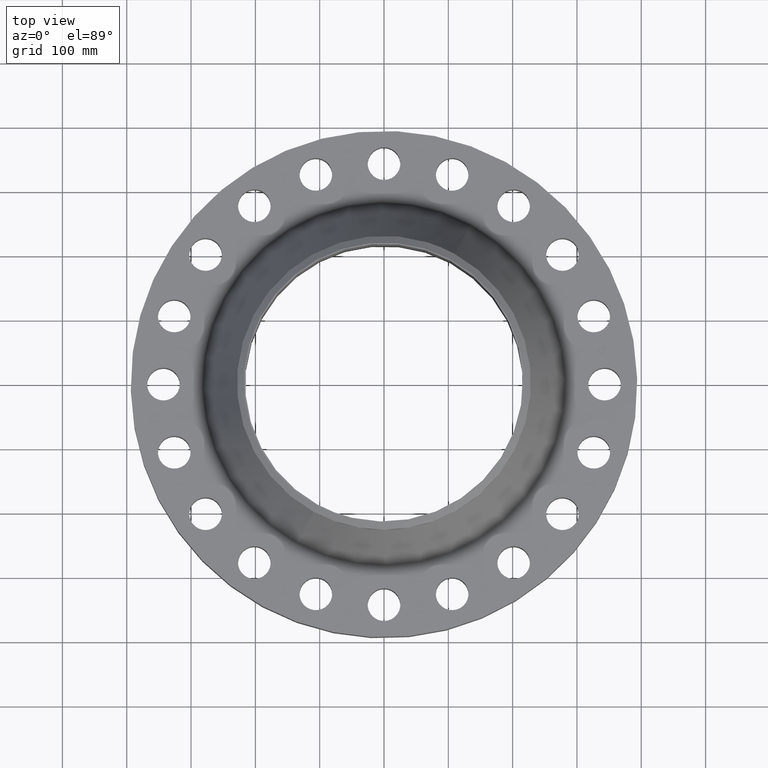
[diagram: clean part render]
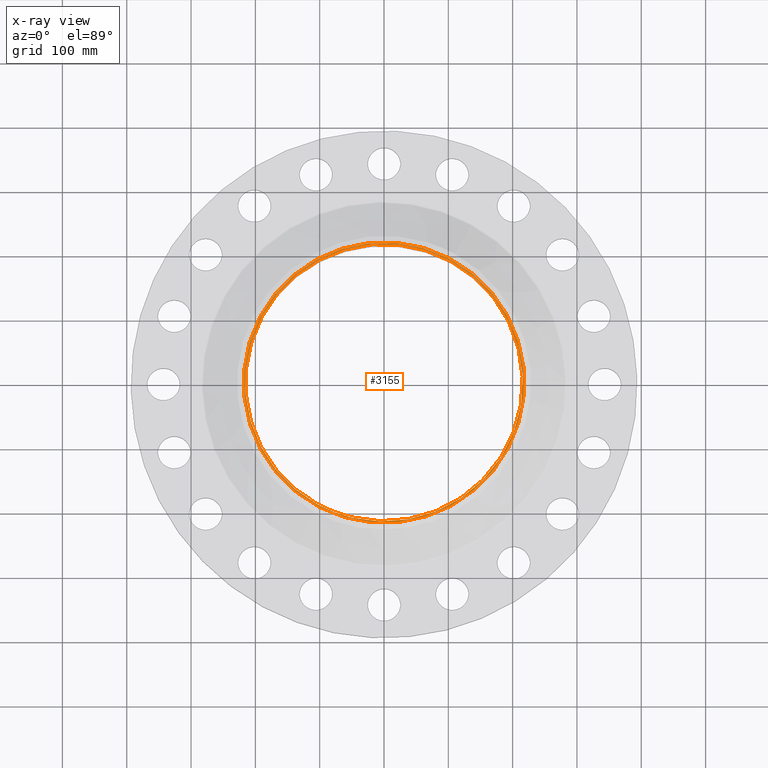
[diagram: x-ray — body ghosted, one internal face saturated and labeled with its STEP entity id]
A machine part, top view, then the same camera in x-ray: the body is ghosted and one INTERNAL B-rep face — a face not visible from any outside direction — is saturated and labeled: STEP entity #3155.
In plain terms, the highlighted planar face has unit normal (0, 0, -1).
Its self-contained STEP definition (entity closure, byte-faithful):
#2472=AXIS2_PLACEMENT_3D('Circle Axis2P3D',#2470,#2471,$) ;
#3131=AXIS2_PLACEMENT_3D('Plane Axis2P3D',#3128,#3129,#3130) ;
#3135=AXIS2_PLACEMENT_3D('Circle Axis2P3D',#3133,#3134,$) ;
#3144=AXIS2_PLACEMENT_3D('Circle Axis2P3D',#3142,#3143,$) ;
#2409=CARTESIAN_POINT('Control Point',(4.07511707815,7.45945177609,9.00000000004)) ;
#2410=CARTESIAN_POINT('Control Point',(4.66098105064,7.13939282921,9.00000000004)) ;
#2411=CARTESIAN_POINT('Control Point',(5.2154233095,6.76181682133,9.00000000004)) ;
#2412=CARTESIAN_POINT('Control Point',(5.73091221257,6.33083345495,9.00000000004)) ;
#2413=CARTESIAN_POINT('Control Point',(6.67056657475,5.37326929513,9.00000000004)) ;
#2414=CARTESIAN_POINT('Control Point',(7.40605811924,4.2512480705,9.00000000003)) ;
#2415=CARTESIAN_POINT('Control Point',(7.71737757209,3.65580229668,9.00000000003)) ;
#2416=CARTESIAN_POINT('Control Point',(8.21906106555,2.4115382118,9.00000000003)) ;
#2417=CARTESIAN_POINT('Control Point',(8.46918771641,1.0934653386,9.00000000003)) ;
#2418=CARTESIAN_POINT('Control Point',(8.52894215445,0.424208378666,9.00000000003)) ;
#2419=CARTESIAN_POINT('Control Point',(8.5162780151,-0.917327703632,9.00000000003)) ;
#2420=CARTESIAN_POINT('Control Point',(8.24296025714,-2.23078757882,9.00000000003)) ;
#2421=CARTESIAN_POINT('Control Point',(8.04205260886,-2.87196741954,9.00000000002)) ;
#2422=CARTESIAN_POINT('Control Point',(7.51696883709,-4.10653879178,9.00000000002)) ;
#2423=CARTESIAN_POINT('Control Point',(6.76181682133,-5.2154233095,9.00000000002)) ;
#2424=CARTESIAN_POINT('Control Point',(6.33083345495,-5.73091221257,9.00000000002)) ;
#2425=CARTESIAN_POINT('Control Point',(5.37326929514,-6.67056657475,9.00000000002)) ;
#2426=CARTESIAN_POINT('Control Point',(4.25124807051,-7.40605811924,9.00000000002)) ;
#2427=CARTESIAN_POINT('Control Point',(3.65580229668,-7.71737757208,9.00000000002)) ;
#2428=CARTESIAN_POINT('Control Point',(2.4115382118,-8.21906106555,9.00000000001)) ;
#2429=CARTESIAN_POINT('Control Point',(1.0934653386,-8.46918771641,9.00000000001)) ;
#2430=CARTESIAN_POINT('Control Point',(0.424208378669,-8.52894215445,9.00000000001)) ;
#2431=CARTESIAN_POINT('Control Point',(-0.917327703629,-8.5162780151,9.00000000001)) ;
#2432=CARTESIAN_POINT('Control Point',(-2.23078757881,-8.24296025714,9.00000000001)) ;
#2433=CARTESIAN_POINT('Control Point',(-2.87196741954,-8.04205260886,9.00000000001)) ;
#2434=CARTESIAN_POINT('Control Point',(-3.48925310566,-7.77951072298,9.00000000001)) ;
#2435=CARTESIAN_POINT('Control Point',(-4.07511707815,-7.4594517761,9.00000000001)) ;
#2436=CARTESIAN_POINT('Vertex',(4.07511707815,7.45945177609,9.00000000001)) ;
#2438=CARTESIAN_POINT('Vertex',(-4.07511707813,-7.45945177608,9.00000000004)) ;
#2470=CARTESIAN_POINT('Axis2P3D Location',(0.,0.,9.00000000001)) ;
#3128=CARTESIAN_POINT('Axis2P3D Location',(0.,9.00000000004,9.00000000004)) ;
#3133=CARTESIAN_POINT('Axis2P3D Location',(5.59482469102E-016,-1.86643351693E-011,9.00000000004)) ;
#3137=CARTESIAN_POINT('Vertex',(4.11286712056,-7.52855276522,9.00000000004)) ;
#3139=CARTESIAN_POINT('Vertex',(-4.11286712056,7.52855276522,9.00000000004)) ;
#3142=CARTESIAN_POINT('Axis2P3D Location',(3.08537797236E-011,-1.80936630508E-012,9.00000000004)) ;
#2471=DIRECTION('Axis2P3D Direction',(-0.,0.,-0.0393700787402)) ;
#3129=DIRECTION('Axis2P3D Direction',(0.,0.,-0.0393700787402)) ;
#3130=DIRECTION('Axis2P3D XDirection',(0.0393700787402,0.,0.)) ;
#3134=DIRECTION('Axis2P3D Direction',(0.,0.,-0.0393700787402)) ;
#3143=DIRECTION('Axis2P3D Direction',(0.,0.,-0.0393700787402)) ;
#3148=ORIENTED_EDGE('',*,*,#3141,.T.) ;
#3149=ORIENTED_EDGE('',*,*,#3146,.T.) ;
#3152=ORIENTED_EDGE('',*,*,#2474,.T.) ;
#3153=ORIENTED_EDGE('',*,*,#2440,.T.) ;
#3154=FACE_BOUND('',#3151,.T.) ;
#3155=ADVANCED_FACE('PartBody',(#3150,#3154),#3132,.F.) ;
#2408=B_SPLINE_CURVE_WITH_KNOTS('',5,(#2409,#2410,#2411,#2412,#2413,#2414,#2415,#2416,#2417,#2418,#2419,#2420,#2421,#2422,#2423,#2424,#2425,#2426,#2427,#2428,#2429,#2430,#2431,#2432,#2433,#2434,#2435),.UNSPECIFIED.,.F.,.U.,(6,3,3,3,3,3,3,3,6),(-339.134926956,-254.351195217,-169.567463478,-84.783731739,2.84217094304E-014,84.783731739,169.567463478,254.351195217,339.134926956),.UNSPECIFIED.) ;
#2473=CIRCLE('generated circle',#2472,8.50000000003) ;
#3136=CIRCLE('generated circle',#3135,8.57874015751) ;
#3145=CIRCLE('generated circle',#3144,8.57874015751) ;
#2440=EDGE_CURVE('',#2437,#2439,#2408,.T.) ;
#2474=EDGE_CURVE('',#2439,#2437,#2473,.T.) ;
#3141=EDGE_CURVE('',#3138,#3140,#3136,.F.) ;
#3146=EDGE_CURVE('',#3140,#3138,#3145,.F.) ;
#3147=EDGE_LOOP('',(#3148,#3149)) ;
#3151=EDGE_LOOP('',(#3152,#3153)) ;
#3150=FACE_OUTER_BOUND('',#3147,.T.) ;
#3132=PLANE('',#3131) ;
#2437=VERTEX_POINT('',#2436) ;
#2439=VERTEX_POINT('',#2438) ;
#3138=VERTEX_POINT('',#3137) ;
#3140=VERTEX_POINT('',#3139) ;